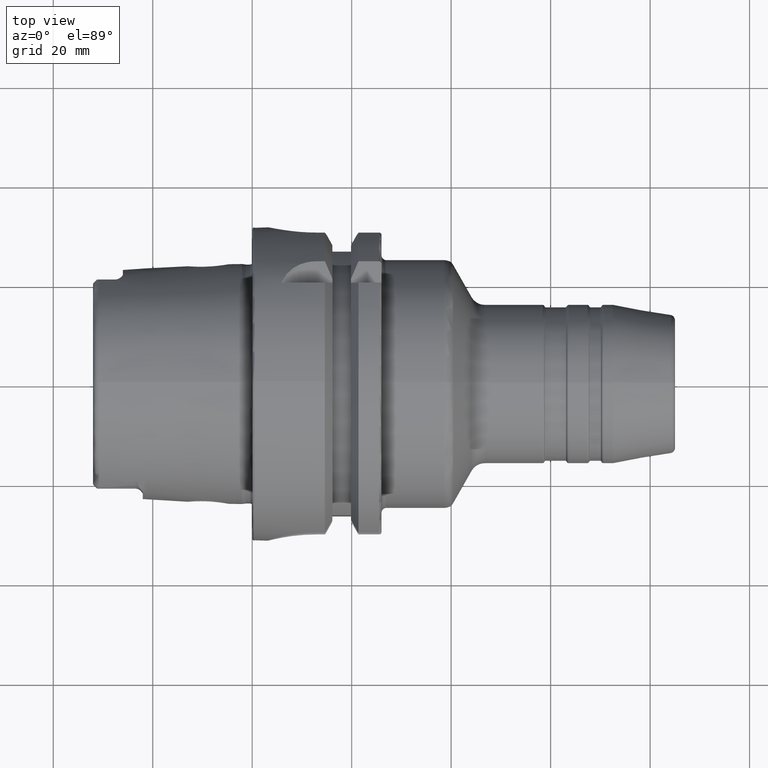
[diagram: clean part render]
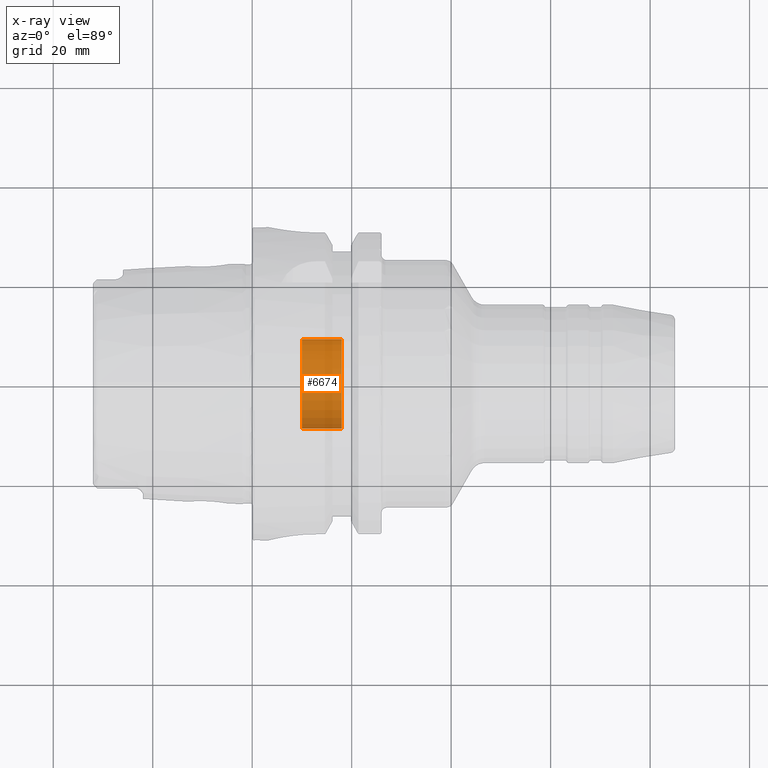
[diagram: x-ray — body ghosted, one internal face saturated and labeled with its STEP entity id]
A machine part, top view, then the same camera in x-ray: the body is ghosted and one INTERNAL B-rep face — a face not visible from any outside direction — is saturated and labeled: STEP entity #6674.
In plain terms, the highlighted cylindrical surface (partial cylindrical patch) has radius 9 mm, axis along (-1, 0, 0).
Its self-contained STEP definition (entity closure, byte-faithful):
#6609=CARTESIAN_POINT('',(1.E1,0.E0,0.E0));
#6610=DIRECTION('',(1.E0,0.E0,0.E0));
#6611=DIRECTION('',(0.E0,-1.E0,0.E0));
#6612=AXIS2_PLACEMENT_3D('',#6609,#6610,#6611);
#6619=DIRECTION('',(1.E0,0.E0,0.E0));
#6620=VECTOR('',#6619,8.E0);
#6621=CARTESIAN_POINT('',(1.E1,-9.E0,0.E0));
#6622=LINE('',#6621,#6620);
#6623=DIRECTION('',(1.E0,0.E0,0.E0));
#6624=VECTOR('',#6623,8.E0);
#6625=CARTESIAN_POINT('',(1.E1,9.E0,0.E0));
#6626=LINE('',#6625,#6624);
#6632=CARTESIAN_POINT('',(1.8E1,0.E0,0.E0));
#6633=DIRECTION('',(-1.E0,0.E0,0.E0));
#6634=DIRECTION('',(0.E0,1.E0,0.E0));
#6635=AXIS2_PLACEMENT_3D('',#6632,#6633,#6634);
#6647=CARTESIAN_POINT('',(1.8E1,9.E0,0.E0));
#6648=CARTESIAN_POINT('',(1.8E1,-9.E0,0.E0));
#6649=VERTEX_POINT('',#6647);
#6650=VERTEX_POINT('',#6648);
#6651=CARTESIAN_POINT('',(1.E1,9.E0,0.E0));
#6652=CARTESIAN_POINT('',(1.E1,-9.E0,0.E0));
#6653=VERTEX_POINT('',#6651);
#6654=VERTEX_POINT('',#6652);
#6659=CARTESIAN_POINT('',(2.376268102482E1,0.E0,0.E0));
#6660=DIRECTION('',(-1.E0,0.E0,0.E0));
#6661=DIRECTION('',(0.E0,1.E0,0.E0));
#6662=AXIS2_PLACEMENT_3D('',#6659,#6660,#6661);
#6663=CYLINDRICAL_SURFACE('',#6662,9.E0);
#6665=ORIENTED_EDGE('',*,*,#6664,.T.);
#6667=ORIENTED_EDGE('',*,*,#6666,.T.);
#6669=ORIENTED_EDGE('',*,*,#6668,.T.);
#6671=ORIENTED_EDGE('',*,*,#6670,.F.);
#6672=EDGE_LOOP('',(#6665,#6667,#6669,#6671));
#6673=FACE_OUTER_BOUND('',#6672,.F.);
#6674=ADVANCED_FACE('',(#6673),#6663,.F.);
#6613=CIRCLE('',#6612,9.E0);
#6636=CIRCLE('',#6635,9.E0);
#6664=EDGE_CURVE('',#6654,#6653,#6613,.T.);
#6666=EDGE_CURVE('',#6653,#6649,#6626,.T.);
#6668=EDGE_CURVE('',#6649,#6650,#6636,.T.);
#6670=EDGE_CURVE('',#6654,#6650,#6622,.T.);